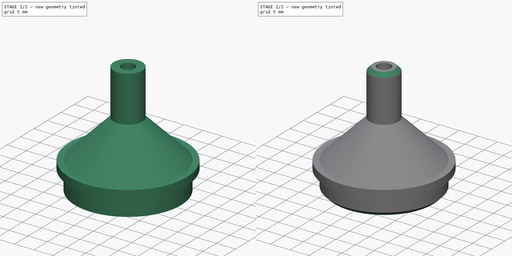
[diagram: build sequence overview — one tinted view per stage of 2, left to right]
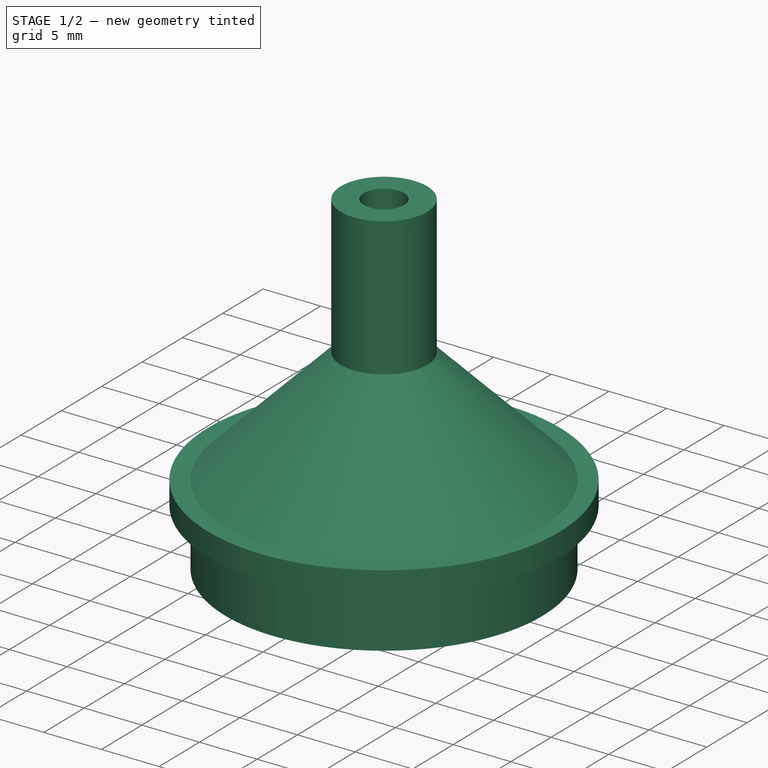
[diagram: stage 1 of 2 — iso view after this stage's code; geometry added in this stage tinted green]
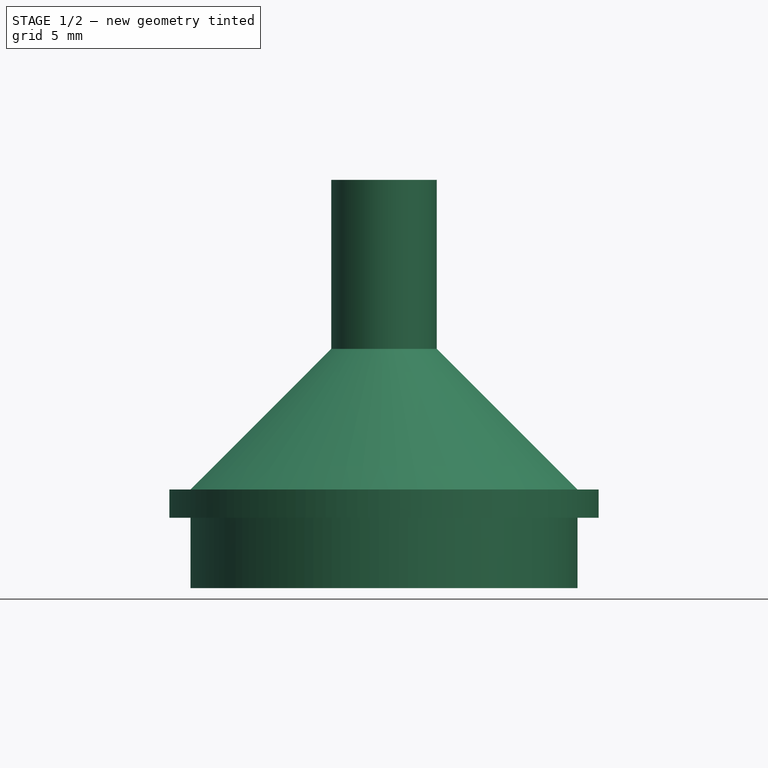
[diagram: stage 1 of 2 — front view after this stage's code; geometry added in this stage tinted green]
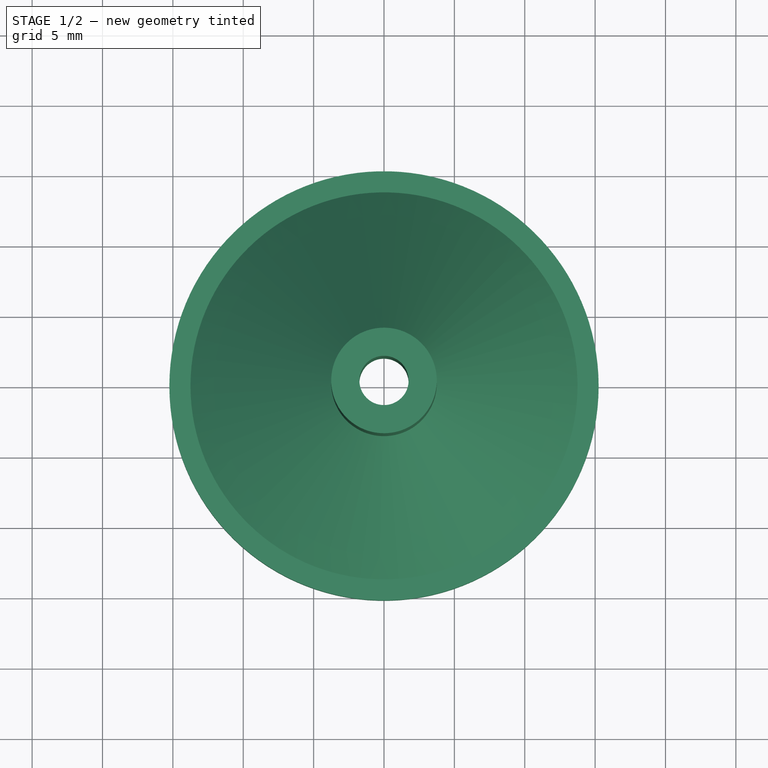
[diagram: stage 1 of 2 — top view after this stage's code; geometry added in this stage tinted green]
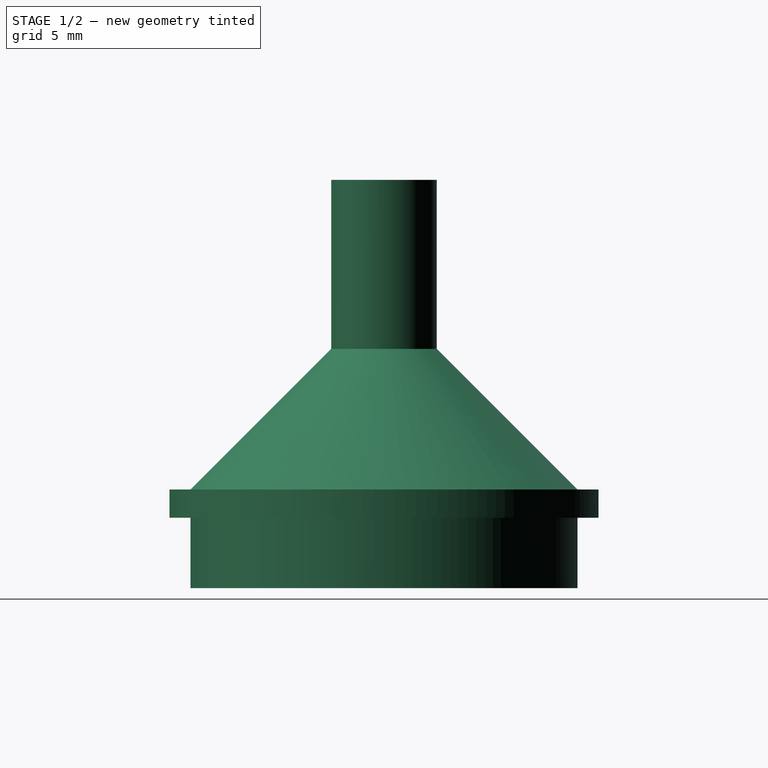
[diagram: stage 1 of 2 — right view after this stage's code; geometry added in this stage tinted green]
FCSTD DOCUMENT  (FreeCAD 0.19R24276 (Git))
Label: air_assist_hose_adapter
License: All rights reserved
LicenseURL: http://en.wikipedia.org/wiki/All_rights_reserved
objects: Sketcher::SketchObject×2, Spreadsheet::Sheet×1, PartDesign::AdditivePipe×1, PartDesign::Chamfer×1, PartDesign::Body×1
note: 7 computed .brp shape members not serialized (recipe doc carries the construction recipe); baked Part::Feature solids carry a one-line shape summary decoded from their .brp

FEATURE [Spreadsheet::Sheet] Spreadsheet  label="parameters"
  cells = A1=pump_inner_diameter; B1(pump_inner_diameter)=28; A2=pump_outer_diameter; B2(pump_outer_diameter)=30; A3=pump_inner_depth; B3(pump_inner_depth)=5; A4=hose_inner_diameter; B4(hose_inner_diameter)=8; A5=hose_outer_diameter; B5(hose_outer_diameter)=9; A6=hose_inner_depth; B6(hose_inner_depth)=12; A7=gap; B7(gap)=0.25; A8=wall; B8(wall)=2
FEATURE [Sketcher::SketchObject] Sketch
  FullyConstrained = true
  MapMode = 5
  Placement = pos=(0,0,0) rot=(1,0,0;1.5708rad)
  Support = -> [XZ_Plane]
  expr: Constraints[23] = <<parameters>>.wall
  expr: Constraints[28] = <<parameters>>.pump_outer_diameter / 2 + <<parameters>>.gap
  expr: Constraints[31] = <<parameters>>.hose_inner_depth
  expr: Constraints[22] = <<parameters>>.wall
  expr: Constraints[27] = <<parameters>>.wall
  expr: Constraints[26] = <<parameters>>.pump_inner_depth
  expr: Constraints[29] = <<parameters>>.pump_inner_diameter / 2 - <<parameters>>.gap
  expr: Constraints[32] = <<parameters>>.hose_inner_diameter / 2 - <<parameters>>.gap
  sketch-geometry (11):
    g0: LineSegment StartX=1.75 StartY=29 StartZ=0 EndX=1.75 EndY=17 EndZ=0
    g1: LineSegment StartX=1.75 StartY=17 StartZ=0 EndX=11.75 EndY=7 EndZ=0
    g2: LineSegment StartX=11.75 StartY=7 StartZ=0 EndX=11.75 EndY=0 EndZ=0
    g3: LineSegment StartX=11.75 StartY=0 StartZ=0 EndX=13.75 EndY=0 EndZ=0
    g4: LineSegment StartX=13.75 StartY=0 StartZ=0 EndX=13.75 EndY=5 EndZ=0
    g5: LineSegment StartX=13.75 StartY=5 StartZ=0 EndX=15.25 EndY=5 EndZ=0
    g6: LineSegment StartX=15.25 StartY=5 StartZ=0 EndX=15.25 EndY=7 EndZ=0
    g7: LineSegment StartX=15.25 StartY=7 StartZ=0 EndX=13.75 EndY=7 EndZ=0
    g8: LineSegment StartX=13.75 StartY=7 StartZ=0 EndX=3.75 EndY=17 EndZ=0
    g9: LineSegment StartX=3.75 StartY=17 StartZ=0 EndX=3.75 EndY=29 EndZ=0
    g10: LineSegment StartX=3.75 StartY=29 StartZ=0 EndX=1.75 EndY=29 EndZ=0
  constraints (33):
    c: Vertical(g0)
    c: Coincident(g0,g1)
    c: Coincident(g1,g2)
    c: Vertical(g2)
    c: Coincident(g2,g3)
    c: Horizontal(g3)
    c: Coincident(g3,g4)
    c: Coincident(g4,g5)
    c: Horizontal(g5)
    c: Coincident(g5,g6)
    c: Vertical(g6)
    c: Coincident(g6,g7)
    c: Horizontal(g7)
    c: Coincident(g8,g9)
    c: Vertical(g9)
    c: Coincident(g9,g10)
    c: Coincident(g10,g0)
    c: Parallel(g8,g1)
    c: Horizontal(g8,g1)
    c: Vertical(g4,g7)
    c: Vertical(g4)
    c: Horizontal(g10)
    c: DistanceX(g10,g10) = 2
    c: DistanceX(g3,g3) = 2
    c: Angle(g1,g2) = 2.35619
    c: PointOnObject(g3,g-1)
    c: DistanceY(g4,g4) = 5
    c: DistanceY(g6,g6) = 2
    c: DistanceX(g-1,g5) = 15.25
    c: DistanceX(g-1,g3) = 13.75
    c: Coincident(g8,g7)
    c: DistanceY(g9,g9) = 12
    c: DistanceX(g-1,g8) = 3.75
FEATURE [Sketcher::SketchObject] Sketch001
  FullyConstrained = true
  MapMode = 5
  Support = -> [XY_Plane]
  expr: Constraints[1] = <<parameters>>.pump_outer_diameter / 2
  sketch-geometry (1):
    g0: Circle CenterX=0 CenterY=0 CenterZ=0 NormalX=0 NormalY=0 NormalZ=1 AngleXU=0 Radius=15
  constraints (2):
    c: Coincident(g0,g-1)
    c: Radius(g0) = 15
FEATURE [PartDesign::AdditivePipe] AdditivePipe
  AuxilleryCurvelinear = true
  AuxillerySpineTangent = false
  Binormal = (0,0,0)
  Mode = 0
  Placement = pos=(0,0,0) rot=(1,0,0;1.5708rad)
  Profile = -> Sketch
  Refine = true
  Spine = -> Sketch001
  SpineTangent = false
  Transformation = 0
  Transition = 0
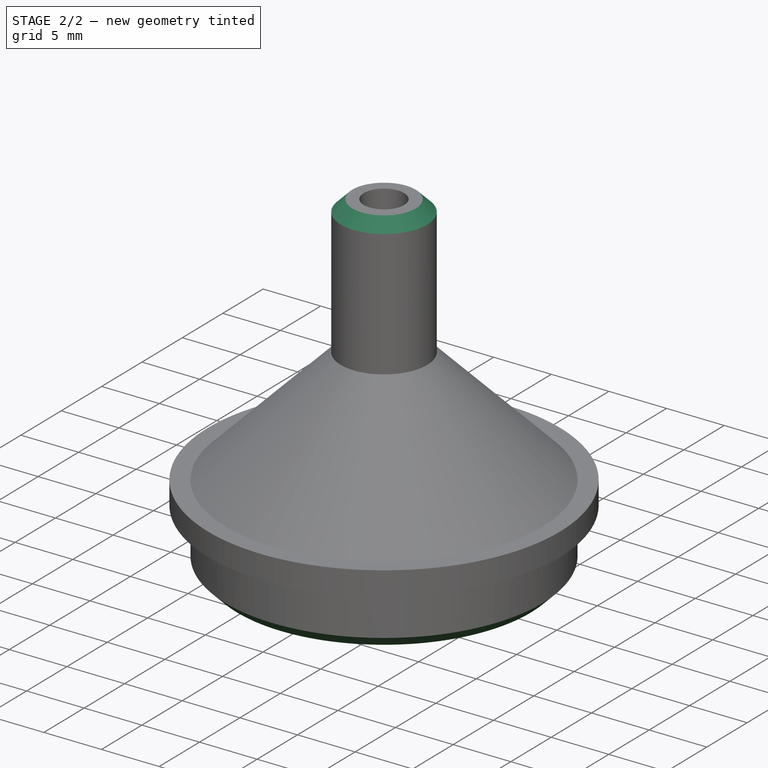
[diagram: stage 2 of 2 — iso view after this stage's code; geometry added in this stage tinted green]
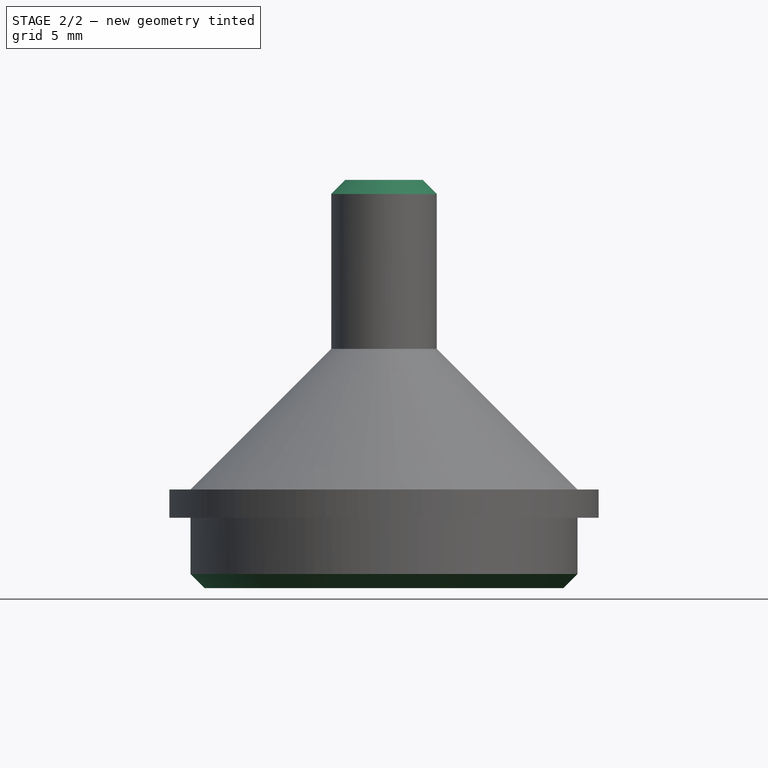
[diagram: stage 2 of 2 — front view after this stage's code; geometry added in this stage tinted green]
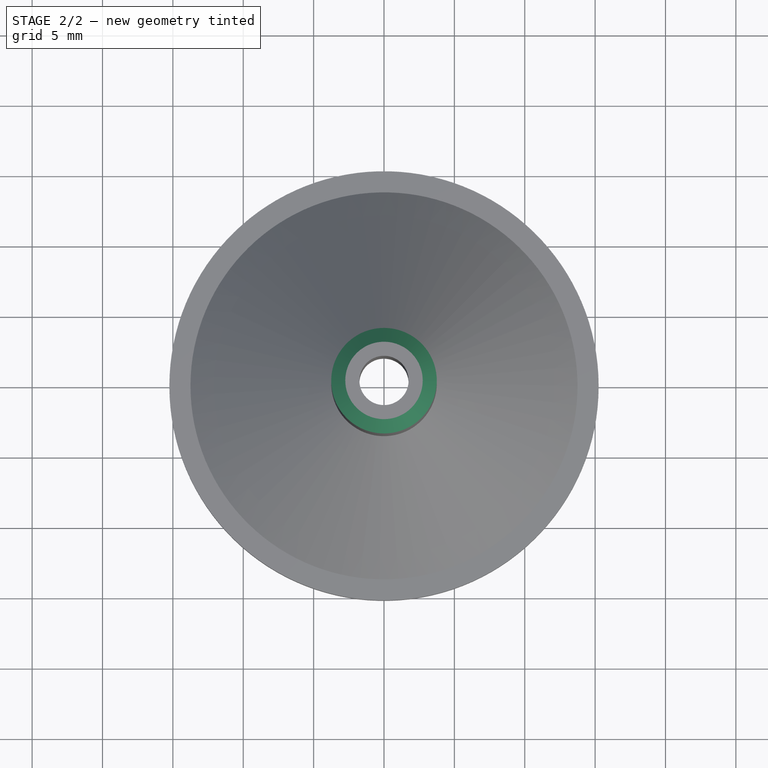
[diagram: stage 2 of 2 — top view after this stage's code; geometry added in this stage tinted green]
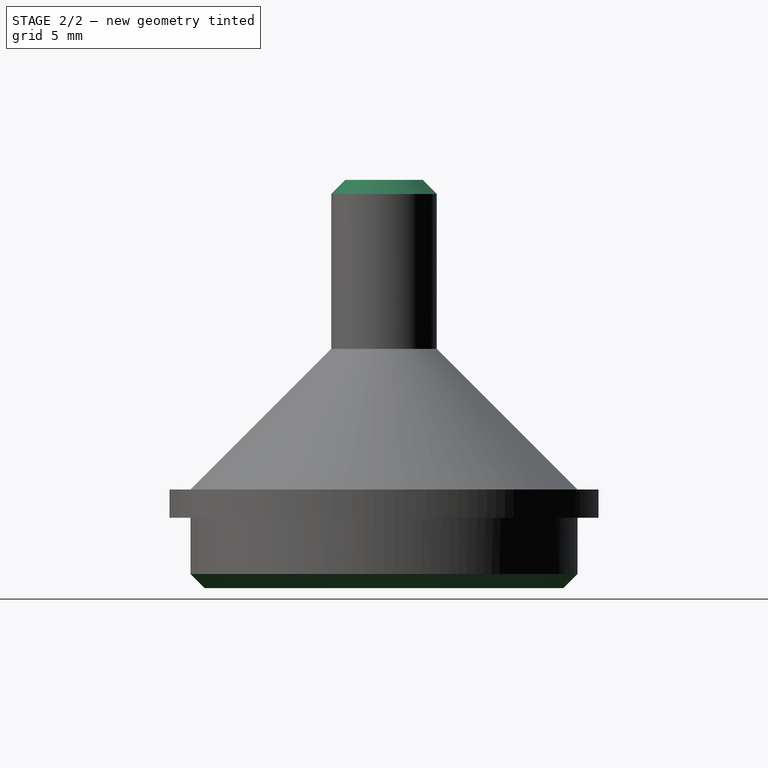
[diagram: stage 2 of 2 — right view after this stage's code; geometry added in this stage tinted green]
FEATURE [PartDesign::Chamfer] Chamfer
  Angle = 45
  Base = -> AdditivePipe [Edge21,Edge9]
  BaseFeature = -> AdditivePipe
  ChamferType = 0
  FlipDirection = false
  Placement = pos=(0,0,0) rot=(1,0,0;1.5708rad)
  Size = 1
  Size2 = 1
  SupportTransform = false
FEATURE [PartDesign::Body] Body
  Group = -> [Sketch,Sketch001,AdditivePipe,Chamfer]
  Origin = -> Origin
  Tip = -> Chamfer
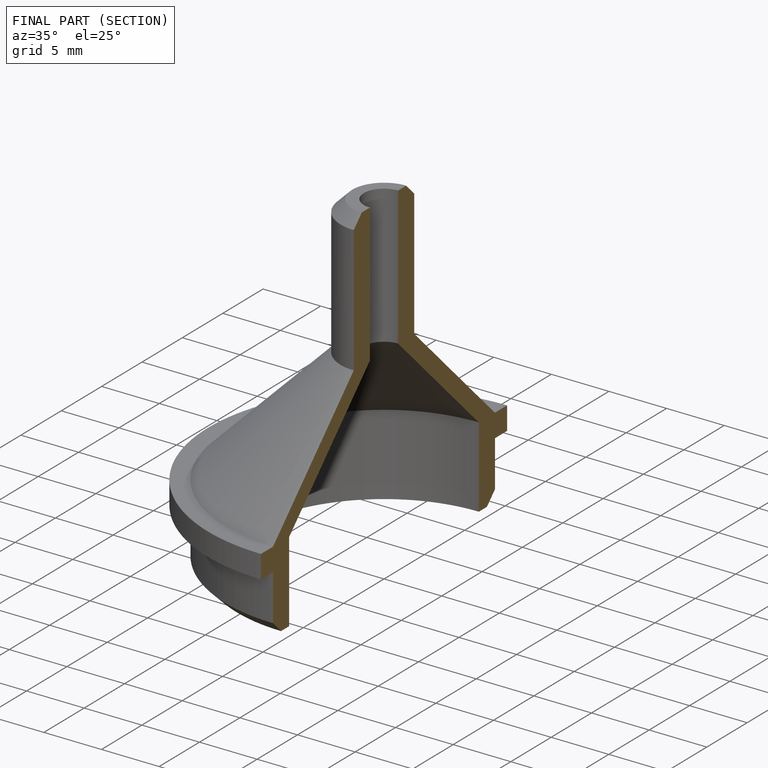
[diagram: finished part — half-section view (interior)]
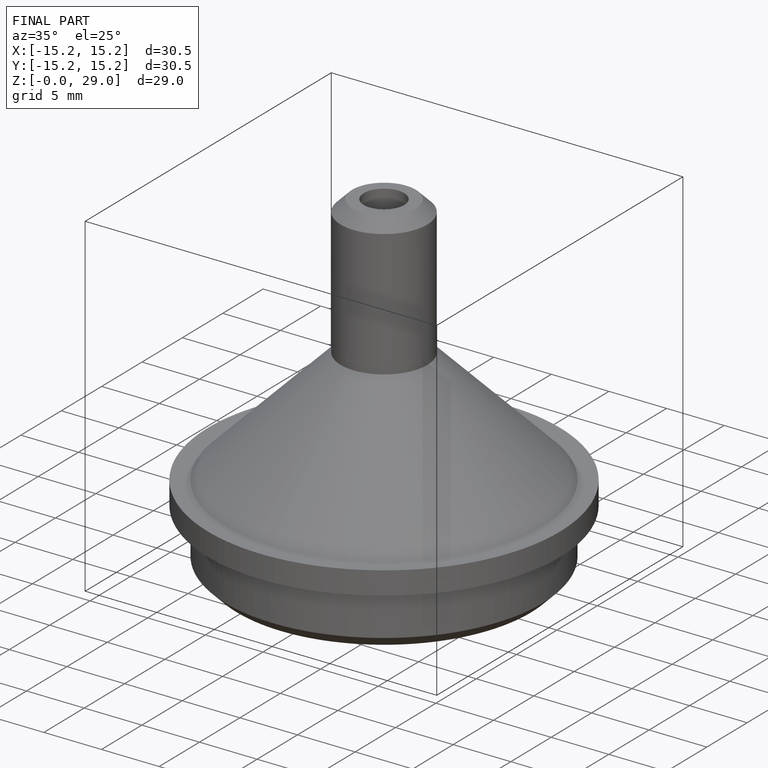
[diagram: finished part — iso view with bounding-box wireframe]
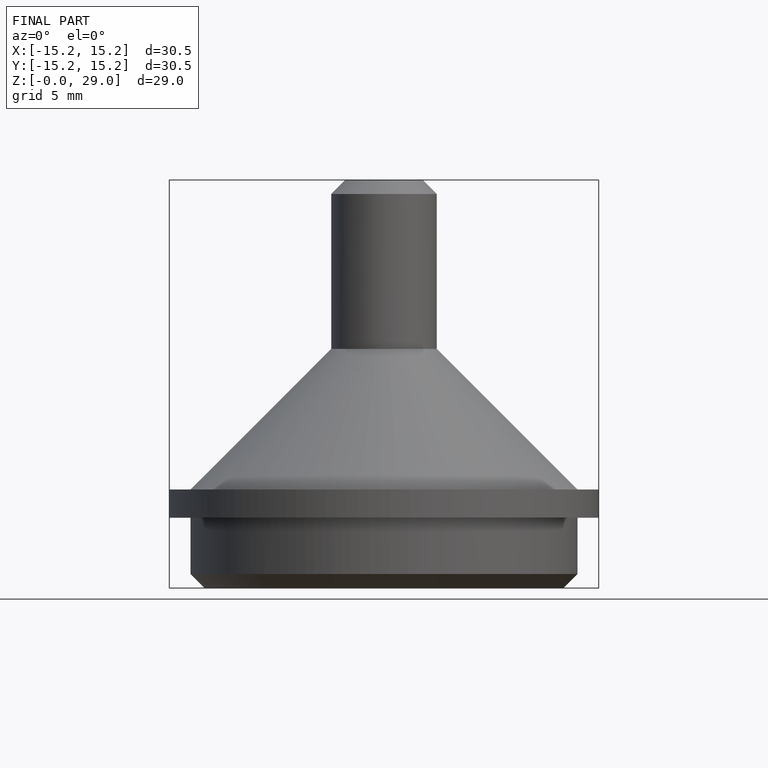
[diagram: finished part — front view with bounding-box wireframe]
